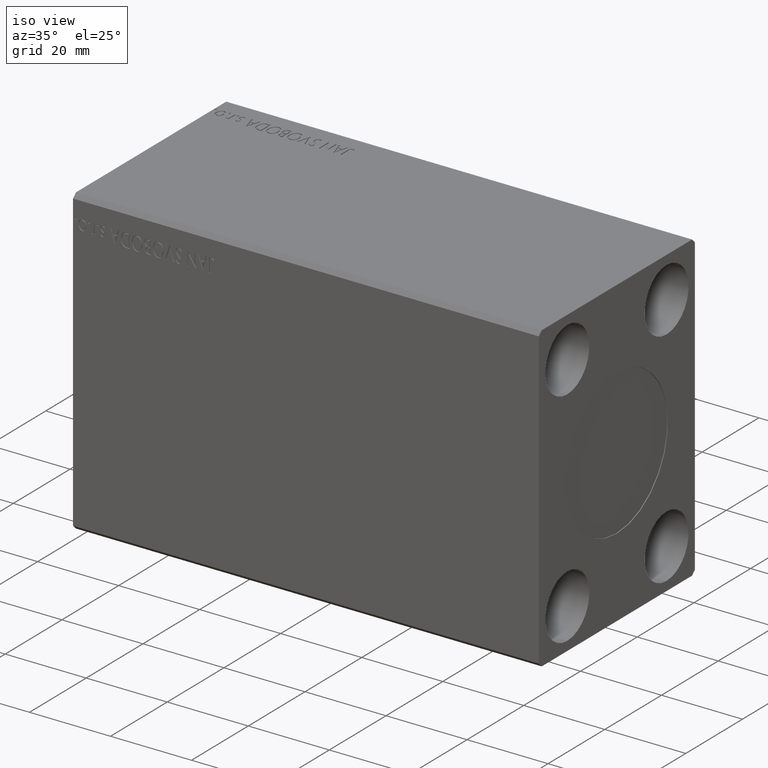
[diagram: clean part render]
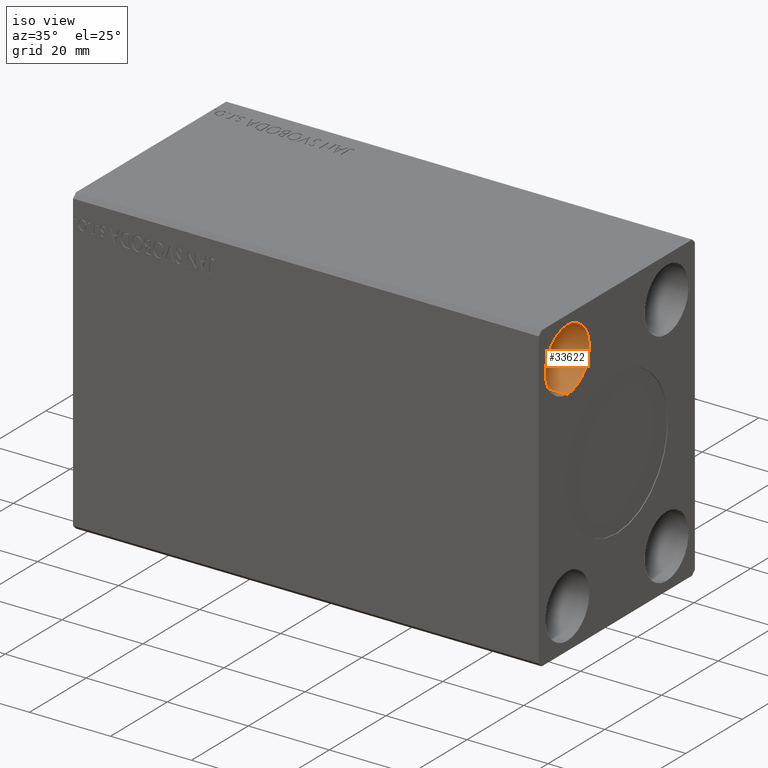
[diagram: same view with one face highlighted and labeled with its STEP entity id]
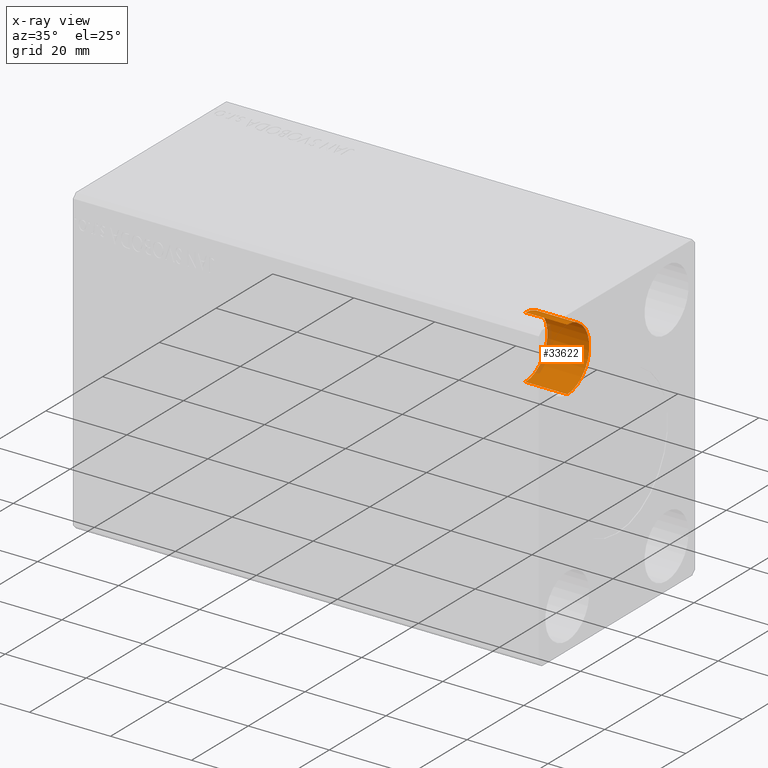
[diagram: x-ray of the same camera — body ghosted, the highlighted face saturated]
A machine part, iso view. The second image highlights one B-rep face of the part: STEP entity #33622.
The next image is the same camera in x-ray: the body ghosted, the highlighted face saturated — about 7% of this face is hidden behind the body in this view.
In plain terms, the highlighted cylindrical surface (partial cylindrical patch) has radius 7.75 mm, axis along (1, -0, -0).
Its self-contained STEP definition (entity closure, byte-faithful):
#1468 = CARTESIAN_POINT ( 'NONE',  ( 104.6700000000000017, -17.50000000000000000, 27.50000000000000000 ) ) ;
#2244 = VERTEX_POINT ( 'NONE', #28100 ) ;
#9679 = CARTESIAN_POINT ( 'NONE',  ( 104.6700000000000017, -17.50000000000000000, 19.74999999999999645 ) ) ;
#11218 = LINE ( 'NONE', #9679, #18004 ) ;
#11275 = CARTESIAN_POINT ( 'NONE',  ( 115.0000000000000000, -17.50000000000000000, 19.74999999999999645 ) ) ;
#11570 = DIRECTION ( 'NONE',  ( 0.000000000000000000, 0.000000000000000000, 1.000000000000000000 ) ) ;
#13605 = FACE_OUTER_BOUND ( 'NONE', #21305, .T. ) ;
#13798 = CIRCLE ( 'NONE', #28940, 7.750000000000003553 ) ;
#13864 = DIRECTION ( 'NONE',  ( 1.000000000000000000, -0.000000000000000000, -0.000000000000000000 ) ) ;
#16197 = CARTESIAN_POINT ( 'NONE',  ( 104.6700000000000017, -17.50000000000000000, 27.50000000000000000 ) ) ;
#18004 = VECTOR ( 'NONE', #28856, 1000.000000000000000 ) ;
#21148 = EDGE_CURVE ( 'NONE', #38443, #22247, #13798, .T. ) ;
#21165 = DIRECTION ( 'NONE',  ( 0.000000000000000000, 0.000000000000000000, 1.000000000000000000 ) ) ;
#21305 = EDGE_LOOP ( 'NONE', ( #32794, #22972, #35806, #34899 ) ) ;
#22247 = VERTEX_POINT ( 'NONE', #11275 ) ;
#22972 = ORIENTED_EDGE ( 'NONE', *, *, #38157, .T. ) ;
#23559 = CARTESIAN_POINT ( 'NONE',  ( 104.6700000000000017, -17.50000000000000000, 35.25000000000000000 ) ) ;
#26545 = CYLINDRICAL_SURFACE ( 'NONE', #36487, 7.750000000000003553 ) ;
#28100 = CARTESIAN_POINT ( 'NONE',  ( 104.6700000000000017, -17.50000000000000000, 19.74999999999999645 ) ) ;
#28856 = DIRECTION ( 'NONE',  ( 1.000000000000000000, -0.000000000000000000, -0.000000000000000000 ) ) ;
#28940 = AXIS2_PLACEMENT_3D ( 'NONE', #30881, #37342, #21165 ) ;
#29698 = AXIS2_PLACEMENT_3D ( 'NONE', #1468, #41097, #11570 ) ;
#29830 = VERTEX_POINT ( 'NONE', #34366 ) ;
#30881 = CARTESIAN_POINT ( 'NONE',  ( 115.0000000000000000, -17.50000000000000000, 27.50000000000000000 ) ) ;
#32794 = ORIENTED_EDGE ( 'NONE', *, *, #35789, .F. ) ;
#33045 = CIRCLE ( 'NONE', #29698, 7.750000000000003553 ) ;
#33622 = ADVANCED_FACE ( 'NONE', ( #13605 ), #26545, .F. ) ;
#33908 = LINE ( 'NONE', #23559, #35877 ) ;
#34366 = CARTESIAN_POINT ( 'NONE',  ( 104.6700000000000017, -17.50000000000000000, 35.25000000000000000 ) ) ;
#34899 = ORIENTED_EDGE ( 'NONE', *, *, #21148, .F. ) ;
#35789 = EDGE_CURVE ( 'NONE', #29830, #38443, #33908, .T. ) ;
#35806 = ORIENTED_EDGE ( 'NONE', *, *, #41499, .T. ) ;
#35877 = VECTOR ( 'NONE', #13864, 1000.000000000000000 ) ;
#36458 = DIRECTION ( 'NONE',  ( 0.000000000000000000, 0.000000000000000000, -1.000000000000000000 ) ) ;
#36487 = AXIS2_PLACEMENT_3D ( 'NONE', #16197, #39690, #36458 ) ;
#37342 = DIRECTION ( 'NONE',  ( -1.000000000000000000, -0.000000000000000000, -0.000000000000000000 ) ) ;
#38157 = EDGE_CURVE ( 'NONE', #29830, #2244, #33045, .T. ) ;
#38443 = VERTEX_POINT ( 'NONE', #41841 ) ;
#39690 = DIRECTION ( 'NONE',  ( 1.000000000000000000, -0.000000000000000000, -0.000000000000000000 ) ) ;
#41097 = DIRECTION ( 'NONE',  ( -1.000000000000000000, -0.000000000000000000, -0.000000000000000000 ) ) ;
#41499 = EDGE_CURVE ( 'NONE', #2244, #22247, #11218, .T. ) ;
#41841 = CARTESIAN_POINT ( 'NONE',  ( 115.0000000000000000, -17.50000000000000000, 35.25000000000000000 ) ) ;